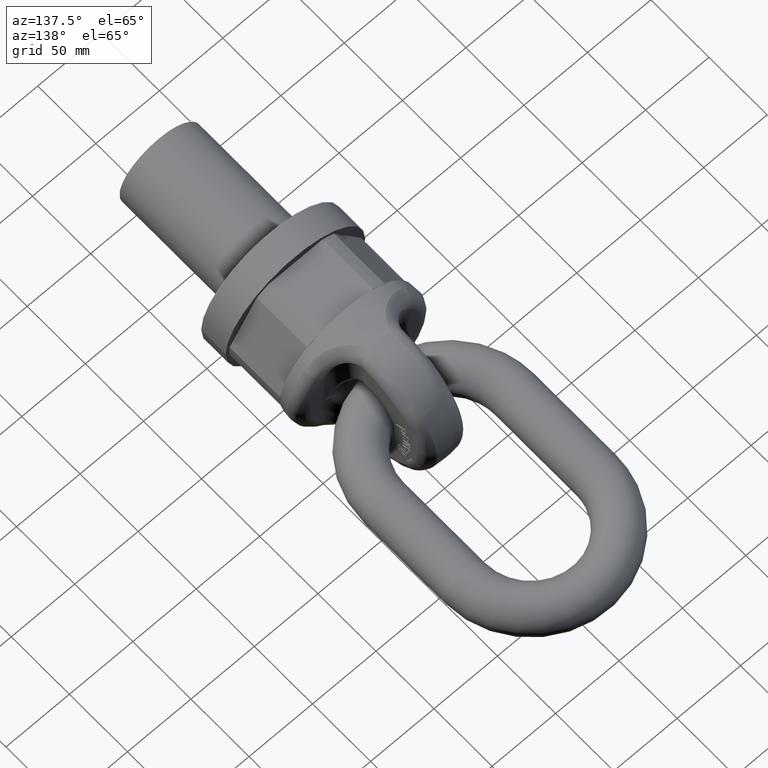
[diagram: clean part render]
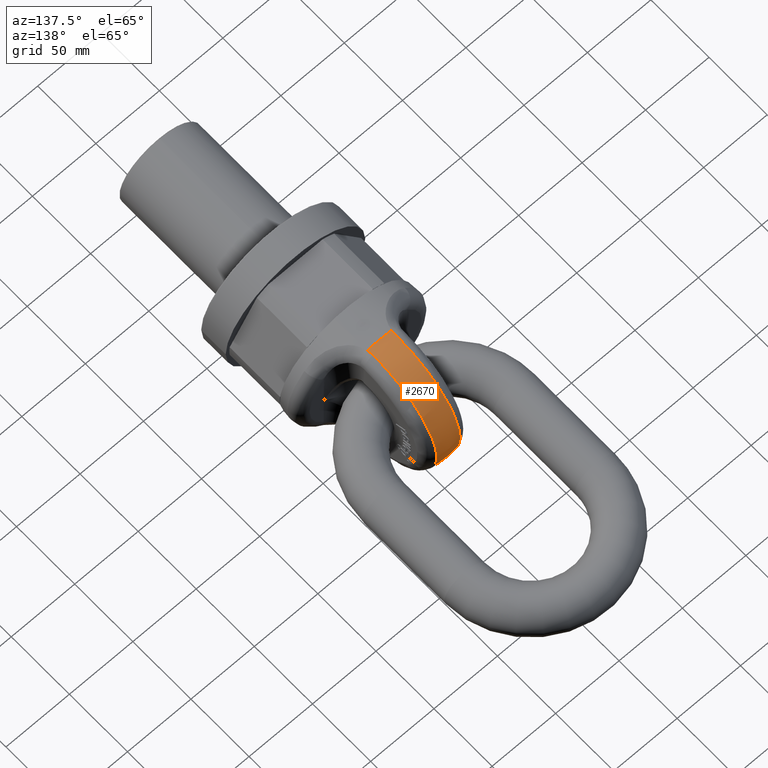
[diagram: same view with one face highlighted and labeled with its STEP entity id]
A machine part, auxiliary view. The second image highlights one B-rep face of the part: STEP entity #2670.
In plain terms, the highlighted spherical surface has radius 55 mm.
Its self-contained STEP definition (entity closure, byte-faithful):
#315=SPHERICAL_SURFACE('',#5660,55.);
#361=B_SPLINE_CURVE_WITH_KNOTS('',3,(#7085,#7086,#7087,#7088),
 .UNSPECIFIED.,.F.,.F.,(4,4),(0.,1.),.UNSPECIFIED.);
#362=B_SPLINE_CURVE_WITH_KNOTS('',3,(#7092,#7093,#7094,#7095),
 .UNSPECIFIED.,.F.,.F.,(4,4),(0.,1.),.UNSPECIFIED.);
#363=B_SPLINE_CURVE_WITH_KNOTS('',3,(#7096,#7097,#7098,#7099),
 .UNSPECIFIED.,.F.,.F.,(4,4),(0.,1.),.UNSPECIFIED.);
#364=B_SPLINE_CURVE_WITH_KNOTS('',3,(#7103,#7104,#7105,#7106),
 .UNSPECIFIED.,.F.,.F.,(4,4),(0.,1.),.UNSPECIFIED.);
#1822=FACE_OUTER_BOUND('',#3106,.T.);
#2670=ADVANCED_FACE('',(#1822),#315,.T.);
#3106=EDGE_LOOP('',(#3530,#3531,#3532,#3533,#3534,#3535,#3536,#3537));
#3530=ORIENTED_EDGE('',*,*,#5068,.F.);
#3531=ORIENTED_EDGE('',*,*,#5075,.T.);
#3532=ORIENTED_EDGE('',*,*,#5076,.T.);
#3533=ORIENTED_EDGE('',*,*,#5077,.T.);
#3534=ORIENTED_EDGE('',*,*,#5072,.F.);
#3535=ORIENTED_EDGE('',*,*,#5078,.T.);
#3536=ORIENTED_EDGE('',*,*,#5079,.T.);
#3537=ORIENTED_EDGE('',*,*,#5080,.T.);
#4655=VERTEX_POINT('',#7041);
#4656=VERTEX_POINT('',#7043);
#4659=VERTEX_POINT('',#7069);
#4660=VERTEX_POINT('',#7071);
#4662=VERTEX_POINT('',#7089);
#4663=VERTEX_POINT('',#7091);
#4664=VERTEX_POINT('',#7100);
#4665=VERTEX_POINT('',#7102);
#5068=EDGE_CURVE('',#4655,#4656,#5562,.T.);
#5072=EDGE_CURVE('',#4659,#4660,#5564,.T.);
#5075=EDGE_CURVE('',#4655,#4662,#361,.T.);
#5076=EDGE_CURVE('',#4662,#4663,#5566,.T.);
#5077=EDGE_CURVE('',#4663,#4660,#362,.T.);
#5078=EDGE_CURVE('',#4659,#4664,#363,.T.);
#5079=EDGE_CURVE('',#4664,#4665,#5567,.T.);
#5080=EDGE_CURVE('',#4665,#4656,#364,.T.);
#5562=CIRCLE('',#5653,54.7689818163599);
#5564=CIRCLE('',#5655,54.7689818163599);
#5566=CIRCLE('',#5658,54.2223326559818);
#5567=CIRCLE('',#5659,54.2223326559818);
#5653=AXIS2_PLACEMENT_3D('',#7042,#5969,#5970);
#5655=AXIS2_PLACEMENT_3D('',#7070,#5973,#5974);
#5658=AXIS2_PLACEMENT_3D('',#7090,#5979,#5980);
#5659=AXIS2_PLACEMENT_3D('',#7101,#5981,#5982);
#5660=AXIS2_PLACEMENT_3D('',#7107,#5983,#5984);
#5969=DIRECTION('',(0.,-1.,0.));
#5970=DIRECTION('',(0.,0.,-1.));
#5973=DIRECTION('',(0.,-1.,0.));
#5974=DIRECTION('',(0.,0.,-1.));
#5979=DIRECTION('',(1.,3.37307342551046E-16,2.34291072916505E-15));
#5980=DIRECTION('',(3.51920644152511E-16,-1.,7.95628454939125E-31));
#5981=DIRECTION('',(-1.,3.37307342551046E-16,0.));
#5982=DIRECTION('',(-3.51920644152511E-16,-1.,0.));
#5983=DIRECTION('',(6.12323399573677E-17,-1.,0.));
#5984=DIRECTION('',(1.,0.,0.));
#7041=CARTESIAN_POINT('',(-9.54646529306767,93.9642646218021,-53.9305698987969));
#7042=CARTESIAN_POINT('',(0.,93.9642646218021,0.));
#7043=CARTESIAN_POINT('',(9.54646529306783,93.9642646218021,-53.9305698987969));
#7069=CARTESIAN_POINT('',(9.5464652930678,93.9642646218021,53.9305698987969));
#7070=CARTESIAN_POINT('',(0.,93.9642646218021,0.));
#7071=CARTESIAN_POINT('',(-9.54646529306795,93.9642646218021,53.9305698987969));
#7085=CARTESIAN_POINT('',(-9.54646529306767,93.9642646218021,-53.9305698987969));
#7086=CARTESIAN_POINT('',(-9.32706459293991,95.431341256225,-54.1063943133605));
#7087=CARTESIAN_POINT('',(-9.21621621621609,96.9116562002808,-54.2026912049826));
#7088=CARTESIAN_POINT('',(-9.21621621621609,98.4054054054054,-54.2190724369574));
#7089=CARTESIAN_POINT('',(-9.21621621621608,98.4054054054054,-54.2190724369574));
#7090=CARTESIAN_POINT('',(-9.21621621621621,99.,-2.15927718552779E-14));
#7091=CARTESIAN_POINT('',(-9.21621621621633,98.4054054054054,54.2190724369574));
#7092=CARTESIAN_POINT('',(-9.21621621621634,98.4054054054054,54.2190724369574));
#7093=CARTESIAN_POINT('',(-9.21621621621634,96.9116562002807,54.2026912049826));
#7094=CARTESIAN_POINT('',(-9.32706459294018,95.4313412562248,54.1063943133604));
#7095=CARTESIAN_POINT('',(-9.54646529306794,93.9642646218019,53.9305698987968));
#7096=CARTESIAN_POINT('',(9.5464652930678,93.9642646218021,53.9305698987969));
#7097=CARTESIAN_POINT('',(9.32706459294004,95.431341256225,54.1063943133605));
#7098=CARTESIAN_POINT('',(9.21621621621622,96.9116562002808,54.2026912049826));
#7099=CARTESIAN_POINT('',(9.21621621621622,98.4054054054054,54.2190724369574));
#7100=CARTESIAN_POINT('',(9.21621621621621,98.4054054054054,54.2190724369574));
#7101=CARTESIAN_POINT('',(9.21621621621621,99.,0.));
#7102=CARTESIAN_POINT('',(9.21621621621621,98.4054054054054,-54.2190724369574));
#7103=CARTESIAN_POINT('',(9.21621621621622,98.4054054054054,-54.2190724369574));
#7104=CARTESIAN_POINT('',(9.21621621621622,96.9116562002807,-54.2026912049826));
#7105=CARTESIAN_POINT('',(9.32706459294005,95.4313412562248,-54.1063943133604));
#7106=CARTESIAN_POINT('',(9.54646529306782,93.9642646218019,-53.9305698987969));
#7107=CARTESIAN_POINT('',(0.,99.,0.));